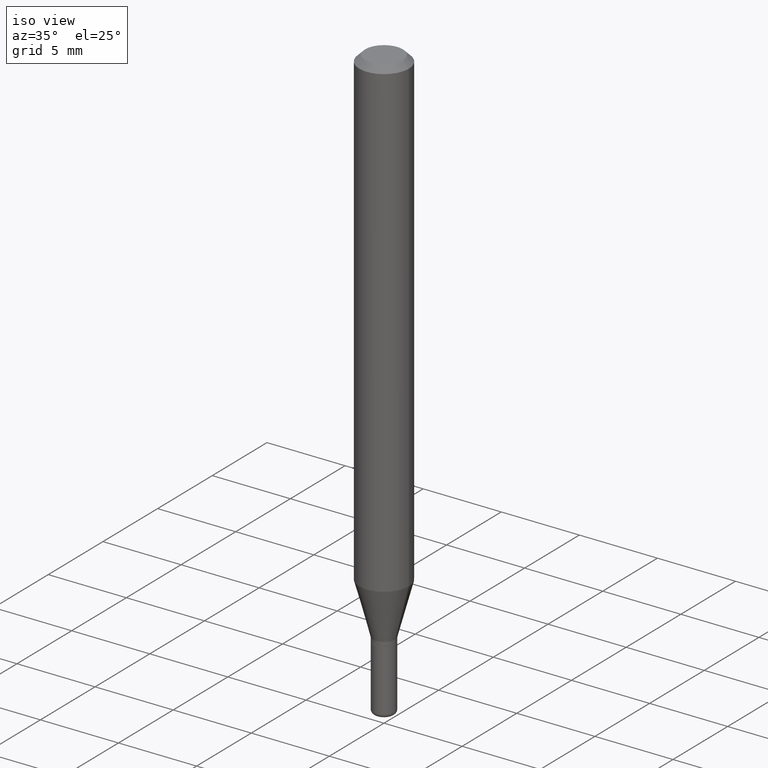
[diagram: clean part render]
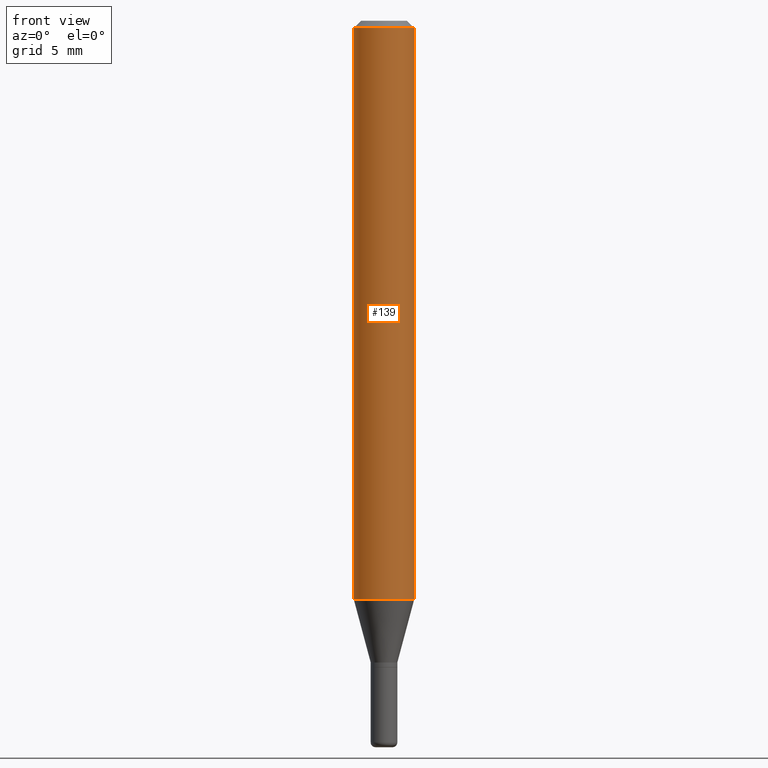
[diagram: tour spotlight — one face highlighted and labeled with its STEP entity id]
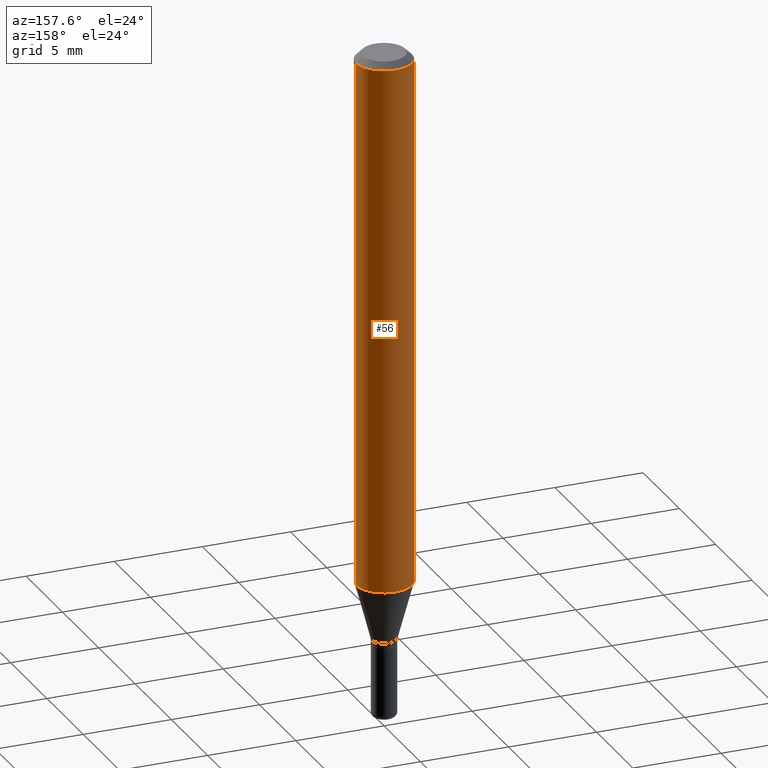
[diagram: tour spotlight — one face highlighted and labeled with its STEP entity id]
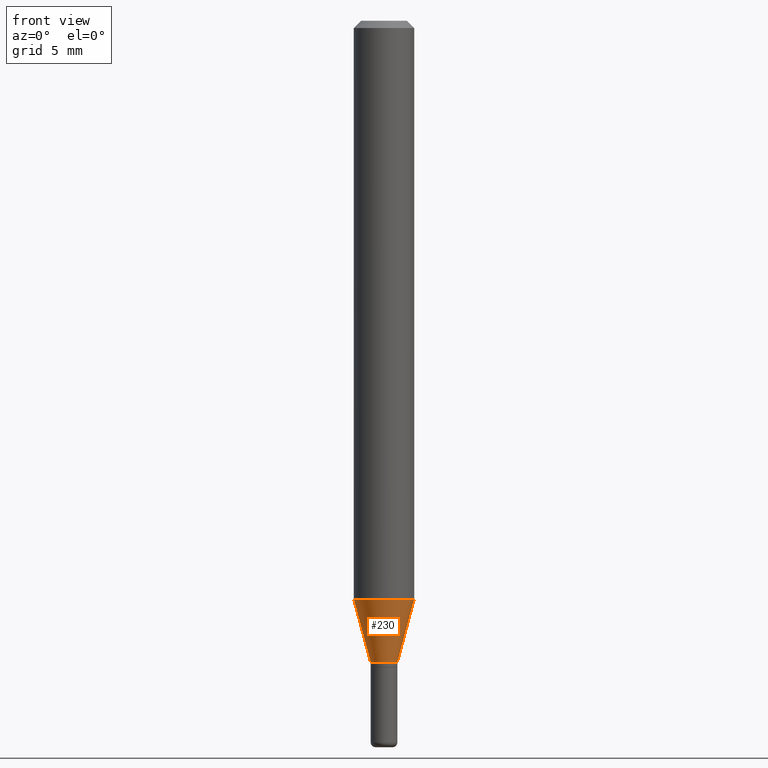
[diagram: tour spotlight — one face highlighted and labeled with its STEP entity id]
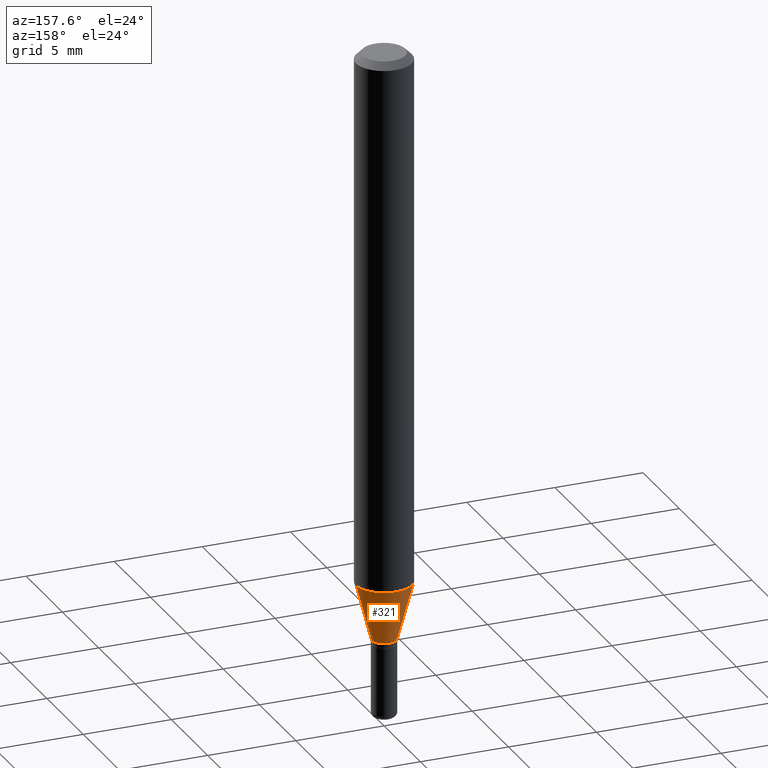
[diagram: tour spotlight — one face highlighted and labeled with its STEP entity id]
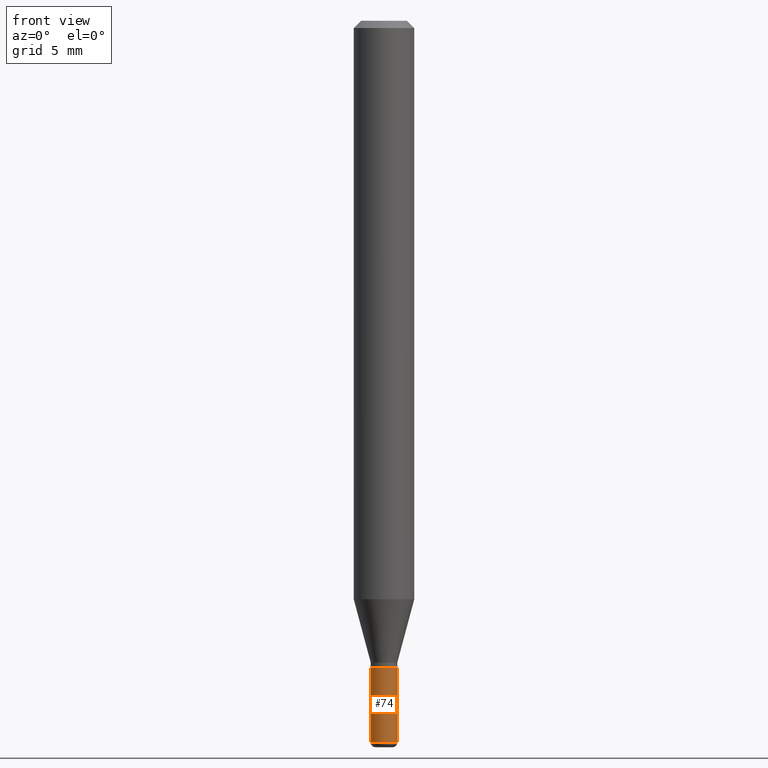
[diagram: tour spotlight — one face highlighted and labeled with its STEP entity id]
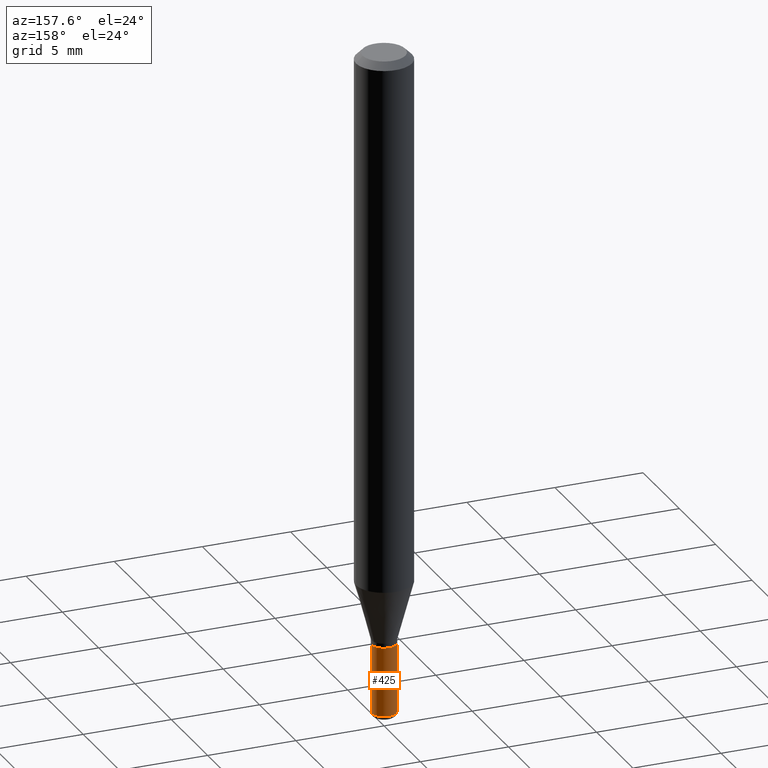
[diagram: tour spotlight — one face highlighted and labeled with its STEP entity id]
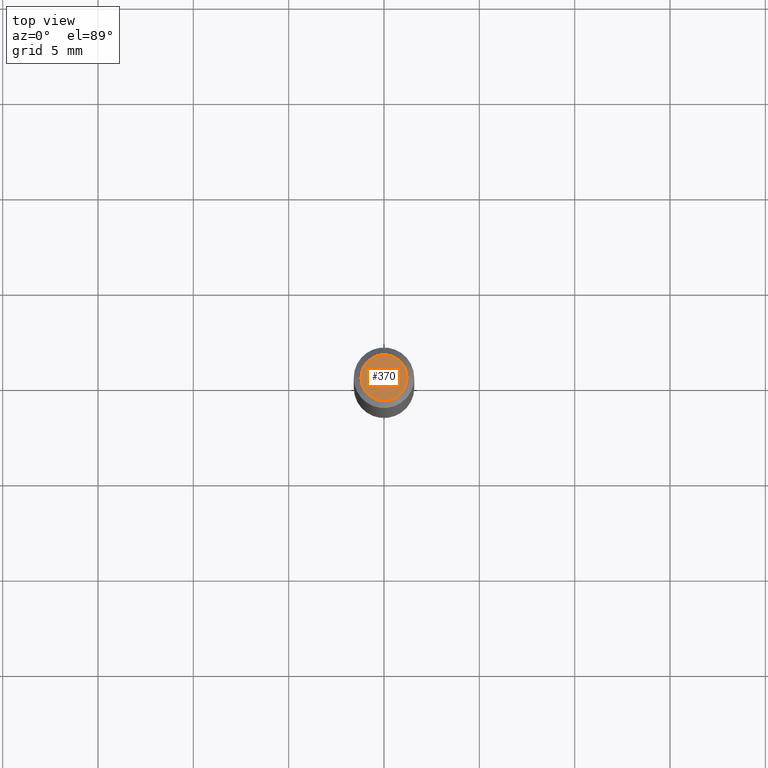
[diagram: tour spotlight — one face highlighted and labeled with its STEP entity id]
A machine part: a face-by-face anatomy tour. The part has 18 B-rep faces; the first image is the clean iso view, then the 7 largest visible faces are spotlighted one at a time (largest first), each with its STEP entity span.

Face 1 — front view, entity #139. In plain terms, the highlighted cylindrical surface (edge-blend (fillet) strip) has radius 1.5875 mm, axis along (-0, 0, 1).
Definition (entity closure, byte-faithful):
#2 = AXIS2_PLACEMENT_3D ( 'NONE', #332, #20, #141 ) ;
#20 = DIRECTION ( 'NONE',  ( -2.445468806185136597E-29, 3.491481338843145583E-15, 1.000000000000000000 ) ) ;
#48 = EDGE_LOOP ( 'NONE', ( #429, #460, #428, #106 ) ) ;
#54 = CIRCLE ( 'NONE', #224, 0.06250000000000000000 ) ;
#81 = CARTESIAN_POINT ( 'NONE',  ( 0.000000000000000000, 0.000000000000000000, 0.000000000000000000 ) ) ;
#84 = CARTESIAN_POINT ( 'NONE',  ( -0.06250000000000000000, -1.667171536545623209E-15, -0.01499999999999970281 ) ) ;
#90 = CYLINDRICAL_SURFACE ( 'NONE', #453, 0.06250000000000000000 ) ;
#106 = ORIENTED_EDGE ( 'NONE', *, *, #398, .F. ) ;
#110 = CARTESIAN_POINT ( 'NONE',  ( 3.668203209277632395E-31, -5.237222008264614861E-17, -0.01499999999999970281 ) ) ;
#119 = VERTEX_POINT ( 'NONE', #473 ) ;
#127 = DIRECTION ( 'NONE',  ( -2.445468806185136597E-29, 3.491481338843145583E-15, 1.000000000000000000 ) ) ;
#131 = DIRECTION ( 'NONE',  ( 1.000000000000000000, -6.982962677686266711E-15, 4.876176775795935793E-29 ) ) ;
#139 = ADVANCED_FACE ( 'NONE', ( #437 ), #90, .T. ) ;
#141 = DIRECTION ( 'NONE',  ( 1.000000000000000000, -6.982962677686270655E-15, 0.000000000000000000 ) ) ;
#160 = VECTOR ( 'NONE', #479, 39.37007874015748143 ) ;
#215 = EDGE_CURVE ( 'NONE', #272, #464, #254, .T. ) ;
#217 = DIRECTION ( 'NONE',  ( 1.000000000000000000, -6.982962677686266711E-15, 0.000000000000000000 ) ) ;
#224 = AXIS2_PLACEMENT_3D ( 'NONE', #110, #407, #217 ) ;
#254 = LINE ( 'NONE', #467, #436 ) ;
#263 = VERTEX_POINT ( 'NONE', #84 ) ;
#272 = VERTEX_POINT ( 'NONE', #354 ) ;
#287 = EDGE_CURVE ( 'NONE', #119, #263, #310, .T. ) ;
#310 = LINE ( 'NONE', #362, #160 ) ;
#329 = CIRCLE ( 'NONE', #2, 0.06250000000000000000 ) ;
#332 = CARTESIAN_POINT ( 'NONE',  ( 2.920814684040035017E-29, -4.170149272708725360E-15, -1.194378221735089340 ) ) ;
#354 = CARTESIAN_POINT ( 'NONE',  ( 0.06250000000000000000, -4.606584440064116240E-15, -1.194378221735089340 ) ) ;
#362 = CARTESIAN_POINT ( 'NONE',  ( -0.06250000000000000000, 4.440892098500626162E-16, -3.074334431409316114E-30 ) ) ;
#390 = CARTESIAN_POINT ( 'NONE',  ( 0.06250000000000000000, -4.888073874380378612E-16, -0.01499999999999970281 ) ) ;
#398 = EDGE_CURVE ( 'NONE', #263, #464, #54, .T. ) ;
#407 = DIRECTION ( 'NONE',  ( -2.445468806185136597E-29, 3.491481338843145583E-15, 1.000000000000000000 ) ) ;
#409 = EDGE_CURVE ( 'NONE', #119, #272, #329, .T. ) ;
#418 = DIRECTION ( 'NONE',  ( -2.445468806185136877E-29, 3.491481338843145188E-15, 1.000000000000000000 ) ) ;
#428 = ORIENTED_EDGE ( 'NONE', *, *, #215, .T. ) ;
#429 = ORIENTED_EDGE ( 'NONE', *, *, #287, .F. ) ;
#436 = VECTOR ( 'NONE', #418, 39.37007874015748143 ) ;
#437 = FACE_OUTER_BOUND ( 'NONE', #48, .T. ) ;
#453 = AXIS2_PLACEMENT_3D ( 'NONE', #81, #127, #131 ) ;
#460 = ORIENTED_EDGE ( 'NONE', *, *, #409, .T. ) ;
#464 = VERTEX_POINT ( 'NONE', #390 ) ;
#467 = CARTESIAN_POINT ( 'NONE',  ( 0.06250000000000000000, -4.364351673553916694E-16, 3.047610484872459871E-30 ) ) ;
#473 = CARTESIAN_POINT ( 'NONE',  ( -0.06250000000000000000, -3.726060062858662743E-15, -1.194378221735089340 ) ) ;
#479 = DIRECTION ( 'NONE',  ( -2.445468806185136877E-29, 3.491481338843145188E-15, 1.000000000000000000 ) ) ;

Face 2 — auxiliary view, entity #56. In plain terms, the highlighted cylindrical surface (edge-blend (fillet) strip) has radius 1.5875 mm, axis along (-0, 0, 1).
Definition (entity closure, byte-faithful):
#12 = AXIS2_PLACEMENT_3D ( 'NONE', #255, #338, #347 ) ;
#17 = EDGE_LOOP ( 'NONE', ( #243, #474, #64, #326 ) ) ;
#25 = DIRECTION ( 'NONE',  ( 1.000000000000000000, -6.982962677686266711E-15, 0.000000000000000000 ) ) ;
#46 = AXIS2_PLACEMENT_3D ( 'NONE', #185, #258, #25 ) ;
#56 = ADVANCED_FACE ( 'NONE', ( #350 ), #145, .T. ) ;
#64 = ORIENTED_EDGE ( 'NONE', *, *, #177, .F. ) ;
#67 = AXIS2_PLACEMENT_3D ( 'NONE', #158, #481, #275 ) ;
#84 = CARTESIAN_POINT ( 'NONE',  ( -0.06250000000000000000, -1.667171536545623209E-15, -0.01499999999999970281 ) ) ;
#119 = VERTEX_POINT ( 'NONE', #473 ) ;
#138 = EDGE_CURVE ( 'NONE', #272, #119, #435, .T. ) ;
#145 = CYLINDRICAL_SURFACE ( 'NONE', #12, 0.06250000000000000000 ) ;
#158 = CARTESIAN_POINT ( 'NONE',  ( 2.920814684040035017E-29, -4.170149272708725360E-15, -1.194378221735089340 ) ) ;
#160 = VECTOR ( 'NONE', #479, 39.37007874015748143 ) ;
#177 = EDGE_CURVE ( 'NONE', #464, #263, #250, .T. ) ;
#185 = CARTESIAN_POINT ( 'NONE',  ( 3.668203209277632395E-31, -5.237222008264614861E-17, -0.01499999999999970281 ) ) ;
#215 = EDGE_CURVE ( 'NONE', #272, #464, #254, .T. ) ;
#243 = ORIENTED_EDGE ( 'NONE', *, *, #138, .T. ) ;
#250 = CIRCLE ( 'NONE', #46, 0.06250000000000000000 ) ;
#254 = LINE ( 'NONE', #467, #436 ) ;
#255 = CARTESIAN_POINT ( 'NONE',  ( 0.000000000000000000, 0.000000000000000000, 0.000000000000000000 ) ) ;
#258 = DIRECTION ( 'NONE',  ( -2.445468806185136597E-29, 3.491481338843145583E-15, 1.000000000000000000 ) ) ;
#263 = VERTEX_POINT ( 'NONE', #84 ) ;
#272 = VERTEX_POINT ( 'NONE', #354 ) ;
#275 = DIRECTION ( 'NONE',  ( 1.000000000000000000, -6.982962677686270655E-15, 0.000000000000000000 ) ) ;
#287 = EDGE_CURVE ( 'NONE', #119, #263, #310, .T. ) ;
#310 = LINE ( 'NONE', #362, #160 ) ;
#326 = ORIENTED_EDGE ( 'NONE', *, *, #215, .F. ) ;
#338 = DIRECTION ( 'NONE',  ( -2.445468806185136597E-29, 3.491481338843145583E-15, 1.000000000000000000 ) ) ;
#347 = DIRECTION ( 'NONE',  ( 1.000000000000000000, -6.982962677686266711E-15, 4.876176775795935793E-29 ) ) ;
#350 = FACE_OUTER_BOUND ( 'NONE', #17, .T. ) ;
#354 = CARTESIAN_POINT ( 'NONE',  ( 0.06250000000000000000, -4.606584440064116240E-15, -1.194378221735089340 ) ) ;
#362 = CARTESIAN_POINT ( 'NONE',  ( -0.06250000000000000000, 4.440892098500626162E-16, -3.074334431409316114E-30 ) ) ;
#390 = CARTESIAN_POINT ( 'NONE',  ( 0.06250000000000000000, -4.888073874380378612E-16, -0.01499999999999970281 ) ) ;
#418 = DIRECTION ( 'NONE',  ( -2.445468806185136877E-29, 3.491481338843145188E-15, 1.000000000000000000 ) ) ;
#435 = CIRCLE ( 'NONE', #67, 0.06250000000000000000 ) ;
#436 = VECTOR ( 'NONE', #418, 39.37007874015748143 ) ;
#464 = VERTEX_POINT ( 'NONE', #390 ) ;
#467 = CARTESIAN_POINT ( 'NONE',  ( 0.06250000000000000000, -4.364351673553916694E-16, 3.047610484872459871E-30 ) ) ;
#473 = CARTESIAN_POINT ( 'NONE',  ( -0.06250000000000000000, -3.726060062858662743E-15, -1.194378221735089340 ) ) ;
#474 = ORIENTED_EDGE ( 'NONE', *, *, #287, .T. ) ;
#479 = DIRECTION ( 'NONE',  ( -2.445468806185136877E-29, 3.491481338843145188E-15, 1.000000000000000000 ) ) ;
#481 = DIRECTION ( 'NONE',  ( -2.445468806185136597E-29, 3.491481338843145583E-15, 1.000000000000000000 ) ) ;

Face 3 — front view, entity #230. In plain terms, the highlighted conical surface has half-angle 15 deg.
Definition (entity closure, byte-faithful):
#2 = AXIS2_PLACEMENT_3D ( 'NONE', #332, #20, #141 ) ;
#8 = AXIS2_PLACEMENT_3D ( 'NONE', #486, #290, #136 ) ;
#20 = DIRECTION ( 'NONE',  ( -2.445468806185136597E-29, 3.491481338843145583E-15, 1.000000000000000000 ) ) ;
#30 = DIRECTION ( 'NONE',  ( 1.000000000000000000, -6.982962677686254878E-15, 0.000000000000000000 ) ) ;
#60 = VERTEX_POINT ( 'NONE', #427 ) ;
#65 = VECTOR ( 'NONE', #456, 39.37007874015748854 ) ;
#72 = ORIENTED_EDGE ( 'NONE', *, *, #165, .T. ) ;
#119 = VERTEX_POINT ( 'NONE', #473 ) ;
#135 = AXIS2_PLACEMENT_3D ( 'NONE', #498, #502, #30 ) ;
#136 = DIRECTION ( 'NONE',  ( 1.000000000000000000, -6.982962677686254878E-15, 0.000000000000000000 ) ) ;
#137 = EDGE_LOOP ( 'NONE', ( #336, #72, #358, #241 ) ) ;
#141 = DIRECTION ( 'NONE',  ( 1.000000000000000000, -6.982962677686270655E-15, 0.000000000000000000 ) ) ;
#157 = EDGE_CURVE ( 'NONE', #60, #119, #443, .T. ) ;
#165 = EDGE_CURVE ( 'NONE', #60, #183, #468, .T. ) ;
#170 = LINE ( 'NONE', #239, #491 ) ;
#183 = VERTEX_POINT ( 'NONE', #455 ) ;
#213 = CONICAL_SURFACE ( 'NONE', #8, 0.02749999999999995851, 0.2617993877991494078 ) ;
#230 = ADVANCED_FACE ( 'NONE', ( #325 ), #213, .T. ) ;
#239 = CARTESIAN_POINT ( 'NONE',  ( 0.02749999999999995851, -4.818244247603540754E-15, -1.325000000000000178 ) ) ;
#241 = ORIENTED_EDGE ( 'NONE', *, *, #409, .F. ) ;
#272 = VERTEX_POINT ( 'NONE', #354 ) ;
#290 = DIRECTION ( 'NONE',  ( -2.445468806185136597E-29, 3.491481338843145583E-15, 1.000000000000000000 ) ) ;
#325 = FACE_OUTER_BOUND ( 'NONE', #137, .T. ) ;
#329 = CIRCLE ( 'NONE', #2, 0.06250000000000000000 ) ;
#332 = CARTESIAN_POINT ( 'NONE',  ( 2.920814684040035017E-29, -4.170149272708725360E-15, -1.194378221735089340 ) ) ;
#336 = ORIENTED_EDGE ( 'NONE', *, *, #157, .F. ) ;
#354 = CARTESIAN_POINT ( 'NONE',  ( 0.06250000000000000000, -4.606584440064116240E-15, -1.194378221735089340 ) ) ;
#358 = ORIENTED_EDGE ( 'NONE', *, *, #392, .T. ) ;
#365 = CARTESIAN_POINT ( 'NONE',  ( -0.02749999999999995851, -4.430813521633141720E-15, -1.325000000000000178 ) ) ;
#392 = EDGE_CURVE ( 'NONE', #183, #272, #170, .T. ) ;
#409 = EDGE_CURVE ( 'NONE', #119, #272, #329, .T. ) ;
#427 = CARTESIAN_POINT ( 'NONE',  ( -0.02749999999999995851, -4.078436792245901838E-15, -1.325000000000000178 ) ) ;
#443 = LINE ( 'NONE', #365, #65 ) ;
#455 = CARTESIAN_POINT ( 'NONE',  ( 0.02749999999999995851, -4.818244247603540754E-15, -1.325000000000000178 ) ) ;
#456 = DIRECTION ( 'NONE',  ( -0.2588190451025206840, 5.211531920934545520E-15, 0.9659258262890682012 ) ) ;
#468 = CIRCLE ( 'NONE', #135, 0.02749999999999995851 ) ;
#473 = CARTESIAN_POINT ( 'NONE',  ( -0.06250000000000000000, -3.726060062858662743E-15, -1.194378221735089340 ) ) ;
#486 = CARTESIAN_POINT ( 'NONE',  ( 3.240246168195306775E-29, -4.626212773967169051E-15, -1.325000000000000178 ) ) ;
#491 = VECTOR ( 'NONE', #493, 39.37007874015748854 ) ;
#493 = DIRECTION ( 'NONE',  ( 0.2588190451025206840, 1.565188264969626504E-15, 0.9659258262890682012 ) ) ;
#498 = CARTESIAN_POINT ( 'NONE',  ( 3.240246168195306775E-29, -4.626212773967169051E-15, -1.325000000000000178 ) ) ;
#502 = DIRECTION ( 'NONE',  ( -2.445468806185136597E-29, 3.491481338843145583E-15, 1.000000000000000000 ) ) ;

Face 4 — auxiliary view, entity #321. In plain terms, the highlighted conical surface has half-angle 15 deg.
Definition (entity closure, byte-faithful):
#31 = AXIS2_PLACEMENT_3D ( 'NONE', #311, #364, #394 ) ;
#60 = VERTEX_POINT ( 'NONE', #427 ) ;
#65 = VECTOR ( 'NONE', #456, 39.37007874015748854 ) ;
#67 = AXIS2_PLACEMENT_3D ( 'NONE', #158, #481, #275 ) ;
#95 = DIRECTION ( 'NONE',  ( -2.445468806185136597E-29, 3.491481338843145583E-15, 1.000000000000000000 ) ) ;
#96 = ORIENTED_EDGE ( 'NONE', *, *, #157, .T. ) ;
#119 = VERTEX_POINT ( 'NONE', #473 ) ;
#138 = EDGE_CURVE ( 'NONE', #272, #119, #435, .T. ) ;
#140 = AXIS2_PLACEMENT_3D ( 'NONE', #444, #95, #161 ) ;
#156 = FACE_OUTER_BOUND ( 'NONE', #282, .T. ) ;
#157 = EDGE_CURVE ( 'NONE', #60, #119, #443, .T. ) ;
#158 = CARTESIAN_POINT ( 'NONE',  ( 2.920814684040035017E-29, -4.170149272708725360E-15, -1.194378221735089340 ) ) ;
#161 = DIRECTION ( 'NONE',  ( 1.000000000000000000, -6.982962677686254878E-15, 0.000000000000000000 ) ) ;
#170 = LINE ( 'NONE', #239, #491 ) ;
#183 = VERTEX_POINT ( 'NONE', #455 ) ;
#239 = CARTESIAN_POINT ( 'NONE',  ( 0.02749999999999995851, -4.818244247603540754E-15, -1.325000000000000178 ) ) ;
#242 = EDGE_CURVE ( 'NONE', #183, #60, #387, .T. ) ;
#272 = VERTEX_POINT ( 'NONE', #354 ) ;
#275 = DIRECTION ( 'NONE',  ( 1.000000000000000000, -6.982962677686270655E-15, 0.000000000000000000 ) ) ;
#280 = ORIENTED_EDGE ( 'NONE', *, *, #392, .F. ) ;
#282 = EDGE_LOOP ( 'NONE', ( #383, #96, #374, #280 ) ) ;
#311 = CARTESIAN_POINT ( 'NONE',  ( 3.240246168195306775E-29, -4.626212773967169051E-15, -1.325000000000000178 ) ) ;
#321 = ADVANCED_FACE ( 'NONE', ( #156 ), #361, .T. ) ;
#354 = CARTESIAN_POINT ( 'NONE',  ( 0.06250000000000000000, -4.606584440064116240E-15, -1.194378221735089340 ) ) ;
#361 = CONICAL_SURFACE ( 'NONE', #31, 0.02749999999999995851, 0.2617993877991494078 ) ;
#364 = DIRECTION ( 'NONE',  ( -2.445468806185136597E-29, 3.491481338843145583E-15, 1.000000000000000000 ) ) ;
#365 = CARTESIAN_POINT ( 'NONE',  ( -0.02749999999999995851, -4.430813521633141720E-15, -1.325000000000000178 ) ) ;
#374 = ORIENTED_EDGE ( 'NONE', *, *, #138, .F. ) ;
#383 = ORIENTED_EDGE ( 'NONE', *, *, #242, .T. ) ;
#387 = CIRCLE ( 'NONE', #140, 0.02749999999999995851 ) ;
#392 = EDGE_CURVE ( 'NONE', #183, #272, #170, .T. ) ;
#394 = DIRECTION ( 'NONE',  ( 1.000000000000000000, -6.982962677686254878E-15, 0.000000000000000000 ) ) ;
#427 = CARTESIAN_POINT ( 'NONE',  ( -0.02749999999999995851, -4.078436792245901838E-15, -1.325000000000000178 ) ) ;
#435 = CIRCLE ( 'NONE', #67, 0.06250000000000000000 ) ;
#443 = LINE ( 'NONE', #365, #65 ) ;
#444 = CARTESIAN_POINT ( 'NONE',  ( 3.240246168195306775E-29, -4.626212773967169051E-15, -1.325000000000000178 ) ) ;
#455 = CARTESIAN_POINT ( 'NONE',  ( 0.02749999999999995851, -4.818244247603540754E-15, -1.325000000000000178 ) ) ;
#456 = DIRECTION ( 'NONE',  ( -0.2588190451025206840, 5.211531920934545520E-15, 0.9659258262890682012 ) ) ;
#473 = CARTESIAN_POINT ( 'NONE',  ( -0.06250000000000000000, -3.726060062858662743E-15, -1.194378221735089340 ) ) ;
#481 = DIRECTION ( 'NONE',  ( -2.445468806185136597E-29, 3.491481338843145583E-15, 1.000000000000000000 ) ) ;
#491 = VECTOR ( 'NONE', #493, 39.37007874015748854 ) ;
#493 = DIRECTION ( 'NONE',  ( 0.2588190451025206840, 1.565188264969626504E-15, 0.9659258262890682012 ) ) ;

Face 5 — front view, entity #74. In plain terms, the highlighted cylindrical surface (edge-blend (fillet) strip) has radius 0.6985 mm, axis along (-0, 0, 1).
Definition (entity closure, byte-faithful):
#27 = VERTEX_POINT ( 'NONE', #421 ) ;
#33 = CARTESIAN_POINT ( 'NONE',  ( 0.02749999999999994463, -5.394338668512659809E-15, -1.490000000000000213 ) ) ;
#38 = DIRECTION ( 'NONE',  ( 1.000000000000000000, -6.982962677686279332E-15, 0.000000000000000000 ) ) ;
#44 = EDGE_CURVE ( 'NONE', #91, #27, #112, .T. ) ;
#47 = CARTESIAN_POINT ( 'NONE',  ( -0.02750000000000000014, -4.736318138781917467E-15, -1.335000000000000187 ) ) ;
#51 = VERTEX_POINT ( 'NONE', #192 ) ;
#74 = ADVANCED_FACE ( 'NONE', ( #307 ), #77, .T. ) ;
#77 = CYLINDRICAL_SURFACE ( 'NONE', #355, 0.02749999999999997238 ) ;
#91 = VERTEX_POINT ( 'NONE', #33 ) ;
#109 = DIRECTION ( 'NONE',  ( 1.000000000000000000, -6.982962677686265922E-15, 4.876176775795935232E-29 ) ) ;
#112 = LINE ( 'NONE', #414, #153 ) ;
#114 = AXIS2_PLACEMENT_3D ( 'NONE', #309, #470, #38 ) ;
#153 = VECTOR ( 'NONE', #193, 39.37007874015748143 ) ;
#192 = CARTESIAN_POINT ( 'NONE',  ( -0.02749999999999994463, -4.736318138781917467E-15, -1.490000000000000213 ) ) ;
#193 = DIRECTION ( 'NONE',  ( -2.445468806185136877E-29, 3.491481338843145188E-15, 1.000000000000000000 ) ) ;
#200 = ORIENTED_EDGE ( 'NONE', *, *, #490, .F. ) ;
#202 = EDGE_CURVE ( 'NONE', #51, #91, #406, .T. ) ;
#216 = EDGE_LOOP ( 'NONE', ( #432, #459, #408, #200 ) ) ;
#222 = DIRECTION ( 'NONE',  ( -2.445468806185136597E-29, 3.491481338843145583E-15, 1.000000000000000000 ) ) ;
#265 = DIRECTION ( 'NONE',  ( -2.445468806185136597E-29, 3.491481338843145583E-15, 1.000000000000000000 ) ) ;
#273 = EDGE_CURVE ( 'NONE', #51, #351, #359, .T. ) ;
#295 = CARTESIAN_POINT ( 'NONE',  ( 0.000000000000000000, 0.000000000000000000, 0.000000000000000000 ) ) ;
#296 = DIRECTION ( 'NONE',  ( 1.000000000000000000, -6.982962677686258822E-15, 0.000000000000000000 ) ) ;
#299 = CARTESIAN_POINT ( 'NONE',  ( 3.643748521215853910E-29, -5.202307194876288105E-15, -1.490000000000000213 ) ) ;
#307 = FACE_OUTER_BOUND ( 'NONE', #216, .T. ) ;
#309 = CARTESIAN_POINT ( 'NONE',  ( 3.264700856257157760E-29, -4.661127587355599122E-15, -1.335000000000000187 ) ) ;
#351 = VERTEX_POINT ( 'NONE', #47 ) ;
#355 = AXIS2_PLACEMENT_3D ( 'NONE', #295, #222, #109 ) ;
#357 = CARTESIAN_POINT ( 'NONE',  ( -0.02749999999999997238, 1.953992523340273549E-16, -1.352707149820097605E-30 ) ) ;
#359 = LINE ( 'NONE', #357, #373 ) ;
#373 = VECTOR ( 'NONE', #439, 39.37007874015748143 ) ;
#403 = AXIS2_PLACEMENT_3D ( 'NONE', #299, #265, #296 ) ;
#406 = CIRCLE ( 'NONE', #403, 0.02749999999999994463 ) ;
#408 = ORIENTED_EDGE ( 'NONE', *, *, #44, .T. ) ;
#414 = CARTESIAN_POINT ( 'NONE',  ( 0.02749999999999997238, -1.920314736363721225E-16, 1.340948613343880837E-30 ) ) ;
#421 = CARTESIAN_POINT ( 'NONE',  ( 0.02750000000000000014, -4.853159060991972403E-15, -1.335000000000000187 ) ) ;
#432 = ORIENTED_EDGE ( 'NONE', *, *, #273, .F. ) ;
#439 = DIRECTION ( 'NONE',  ( -2.445468806185136877E-29, 3.491481338843145188E-15, 1.000000000000000000 ) ) ;
#459 = ORIENTED_EDGE ( 'NONE', *, *, #202, .T. ) ;
#470 = DIRECTION ( 'NONE',  ( -2.445468806185136597E-29, 3.491481338843145583E-15, 1.000000000000000000 ) ) ;
#480 = CIRCLE ( 'NONE', #114, 0.02750000000000000014 ) ;
#490 = EDGE_CURVE ( 'NONE', #351, #27, #480, .T. ) ;

Face 6 — auxiliary view, entity #425. In plain terms, the highlighted cylindrical surface (edge-blend (fillet) strip) has radius 0.6985 mm, axis along (-0, 0, 1).
Definition (entity closure, byte-faithful):
#9 = EDGE_CURVE ( 'NONE', #91, #51, #457, .T. ) ;
#27 = VERTEX_POINT ( 'NONE', #421 ) ;
#28 = ORIENTED_EDGE ( 'NONE', *, *, #44, .F. ) ;
#33 = CARTESIAN_POINT ( 'NONE',  ( 0.02749999999999994463, -5.394338668512659809E-15, -1.490000000000000213 ) ) ;
#34 = ORIENTED_EDGE ( 'NONE', *, *, #191, .F. ) ;
#40 = ORIENTED_EDGE ( 'NONE', *, *, #9, .T. ) ;
#44 = EDGE_CURVE ( 'NONE', #91, #27, #112, .T. ) ;
#45 = DIRECTION ( 'NONE',  ( -2.445468806185136597E-29, 3.491481338843145583E-15, 1.000000000000000000 ) ) ;
#47 = CARTESIAN_POINT ( 'NONE',  ( -0.02750000000000000014, -4.736318138781917467E-15, -1.335000000000000187 ) ) ;
#51 = VERTEX_POINT ( 'NONE', #192 ) ;
#55 = AXIS2_PLACEMENT_3D ( 'NONE', #442, #400, #397 ) ;
#91 = VERTEX_POINT ( 'NONE', #33 ) ;
#112 = LINE ( 'NONE', #414, #153 ) ;
#153 = VECTOR ( 'NONE', #193, 39.37007874015748143 ) ;
#176 = DIRECTION ( 'NONE',  ( -2.445468806185136597E-29, 3.491481338843145583E-15, 1.000000000000000000 ) ) ;
#180 = FACE_OUTER_BOUND ( 'NONE', #511, .T. ) ;
#191 = EDGE_CURVE ( 'NONE', #27, #351, #337, .T. ) ;
#192 = CARTESIAN_POINT ( 'NONE',  ( -0.02749999999999994463, -4.736318138781917467E-15, -1.490000000000000213 ) ) ;
#193 = DIRECTION ( 'NONE',  ( -2.445468806185136877E-29, 3.491481338843145188E-15, 1.000000000000000000 ) ) ;
#228 = CARTESIAN_POINT ( 'NONE',  ( 0.000000000000000000, 0.000000000000000000, 0.000000000000000000 ) ) ;
#273 = EDGE_CURVE ( 'NONE', #51, #351, #359, .T. ) ;
#324 = CARTESIAN_POINT ( 'NONE',  ( 3.264700856257157760E-29, -4.661127587355599122E-15, -1.335000000000000187 ) ) ;
#334 = DIRECTION ( 'NONE',  ( 1.000000000000000000, -6.982962677686279332E-15, 0.000000000000000000 ) ) ;
#337 = CIRCLE ( 'NONE', #342, 0.02750000000000000014 ) ;
#342 = AXIS2_PLACEMENT_3D ( 'NONE', #324, #176, #334 ) ;
#345 = DIRECTION ( 'NONE',  ( 1.000000000000000000, -6.982962677686265922E-15, 4.876176775795935232E-29 ) ) ;
#351 = VERTEX_POINT ( 'NONE', #47 ) ;
#357 = CARTESIAN_POINT ( 'NONE',  ( -0.02749999999999997238, 1.953992523340273549E-16, -1.352707149820097605E-30 ) ) ;
#359 = LINE ( 'NONE', #357, #373 ) ;
#367 = AXIS2_PLACEMENT_3D ( 'NONE', #228, #45, #345 ) ;
#373 = VECTOR ( 'NONE', #439, 39.37007874015748143 ) ;
#397 = DIRECTION ( 'NONE',  ( 1.000000000000000000, -6.982962677686258822E-15, 0.000000000000000000 ) ) ;
#400 = DIRECTION ( 'NONE',  ( -2.445468806185136597E-29, 3.491481338843145583E-15, 1.000000000000000000 ) ) ;
#414 = CARTESIAN_POINT ( 'NONE',  ( 0.02749999999999997238, -1.920314736363721225E-16, 1.340948613343880837E-30 ) ) ;
#421 = CARTESIAN_POINT ( 'NONE',  ( 0.02750000000000000014, -4.853159060991972403E-15, -1.335000000000000187 ) ) ;
#425 = ADVANCED_FACE ( 'NONE', ( #180 ), #495, .T. ) ;
#439 = DIRECTION ( 'NONE',  ( -2.445468806185136877E-29, 3.491481338843145188E-15, 1.000000000000000000 ) ) ;
#440 = ORIENTED_EDGE ( 'NONE', *, *, #273, .T. ) ;
#442 = CARTESIAN_POINT ( 'NONE',  ( 3.643748521215853910E-29, -5.202307194876288105E-15, -1.490000000000000213 ) ) ;
#457 = CIRCLE ( 'NONE', #55, 0.02749999999999994463 ) ;
#495 = CYLINDRICAL_SURFACE ( 'NONE', #367, 0.02749999999999997238 ) ;
#511 = EDGE_LOOP ( 'NONE', ( #40, #440, #34, #28 ) ) ;

Face 7 — top view, entity #370. In plain terms, the highlighted planar face has unit normal (0, -0, -1).
Definition (entity closure, byte-faithful):
#4 = DIRECTION ( 'NONE',  ( -1.000000000000000000, 6.982962677686265922E-15, -4.876176775795935793E-29 ) ) ;
#22 = EDGE_CURVE ( 'NONE', #196, #301, #233, .T. ) ;
#53 = DIRECTION ( 'NONE',  ( 2.438088387897960049E-29, -3.491481338843145188E-15, -1.000000000000000000 ) ) ;
#61 = CARTESIAN_POINT ( 'NONE',  ( -6.680649051745406845E-45, 9.538196290434862081E-31, 2.731847993664263218E-16 ) ) ;
#75 = AXIS2_PLACEMENT_3D ( 'NONE', #117, #515, #120 ) ;
#94 = FACE_OUTER_BOUND ( 'NONE', #327, .T. ) ;
#103 = CARTESIAN_POINT ( 'NONE',  ( 0.04750000000000000749, -4.035134999187568762E-16, 2.731847993664288856E-16 ) ) ;
#117 = CARTESIAN_POINT ( 'NONE',  ( -6.680649051745406845E-45, 9.538196290434862081E-31, 2.731847993664263218E-16 ) ) ;
#120 = DIRECTION ( 'NONE',  ( 1.000000000000000000, -6.982962677686266711E-15, 4.852736867747365086E-29 ) ) ;
#167 = DIRECTION ( 'NONE',  ( -2.445468806185136597E-29, 3.491481338843145583E-15, 1.000000000000000000 ) ) ;
#196 = VERTEX_POINT ( 'NONE', #103 ) ;
#203 = CARTESIAN_POINT ( 'NONE',  ( 3.316907271900976589E-16, 0.04750000000000000749, -2.925296391183627249E-17 ) ) ;
#206 = AXIS2_PLACEMENT_3D ( 'NONE', #61, #167, #283 ) ;
#233 = CIRCLE ( 'NONE', #206, 0.04750000000000000749 ) ;
#257 = AXIS2_PLACEMENT_3D ( 'NONE', #203, #53, #4 ) ;
#269 = PLANE ( 'NONE',  #257 ) ;
#283 = DIRECTION ( 'NONE',  ( 1.000000000000000000, -6.982962677686266711E-15, 4.852736867747365086E-29 ) ) ;
#284 = CIRCLE ( 'NONE', #75, 0.04750000000000000749 ) ;
#301 = VERTEX_POINT ( 'NONE', #441 ) ;
#322 = ORIENTED_EDGE ( 'NONE', *, *, #22, .T. ) ;
#327 = EDGE_LOOP ( 'NONE', ( #446, #322 ) ) ;
#370 = ADVANCED_FACE ( 'NONE', ( #94 ), #269, .F. ) ;
#441 = CARTESIAN_POINT ( 'NONE',  ( -0.04750000000000000749, 3.578768372314221353E-16, 2.731847993664239060E-16 ) ) ;
#446 = ORIENTED_EDGE ( 'NONE', *, *, #513, .T. ) ;
#513 = EDGE_CURVE ( 'NONE', #301, #196, #284, .T. ) ;
#515 = DIRECTION ( 'NONE',  ( -2.445468806185136597E-29, 3.491481338843145583E-15, 1.000000000000000000 ) ) ;